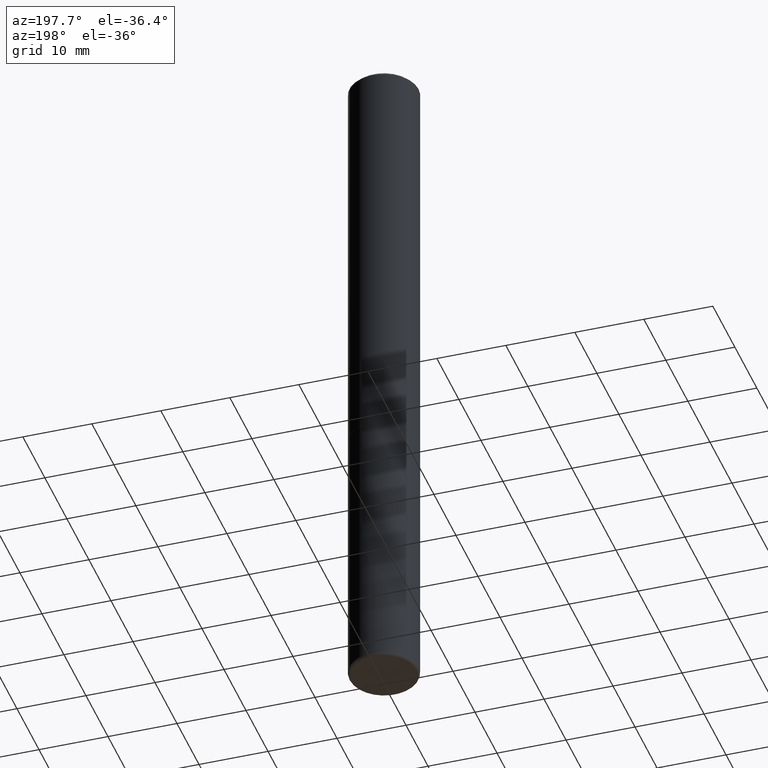
[diagram: clean part render]
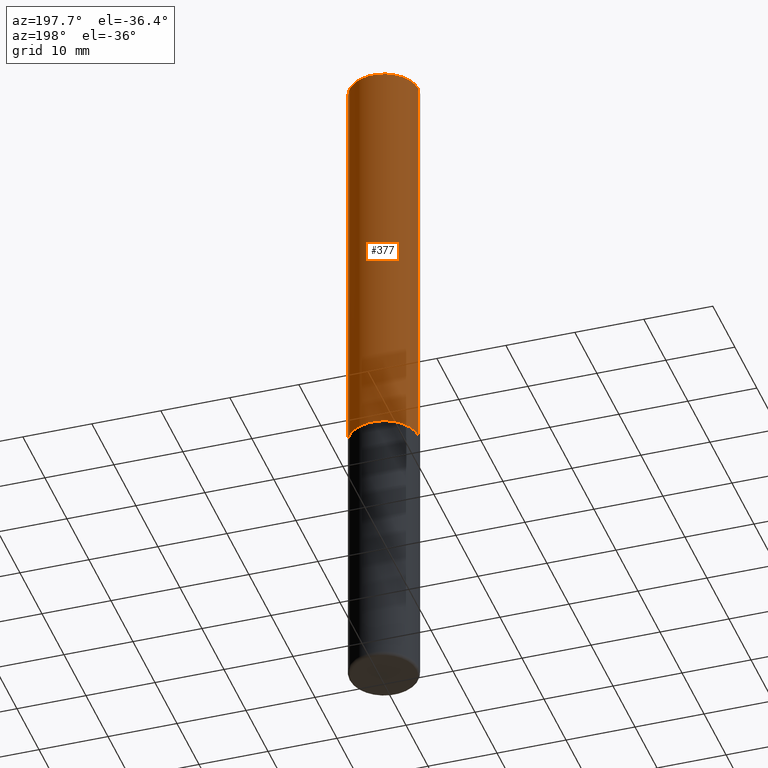
[diagram: same view with one face highlighted and labeled with its STEP entity id]
A machine part, auxiliary view. The second image highlights one B-rep face of the part: STEP entity #377.
In plain terms, the highlighted cylindrical surface (edge-blend (fillet) strip) has radius 5 mm, axis along (-0, 0, 1).
Its self-contained STEP definition (entity closure, byte-faithful):
#8 = VECTOR ( 'NONE', #238, 39.37007874015748143 ) ;
#28 = VERTEX_POINT ( 'NONE', #150 ) ;
#37 = AXIS2_PLACEMENT_3D ( 'NONE', #254, #380, #95 ) ;
#40 = CARTESIAN_POINT ( 'NONE',  ( 0.1968500000000002748, -9.618681940378978228E-15, -2.361199999999999743 ) ) ;
#41 = VERTEX_POINT ( 'NONE', #40 ) ;
#42 = VECTOR ( 'NONE', #297, 39.37007874015748143 ) ;
#51 = CARTESIAN_POINT ( 'NONE',  ( 4.890937612370283668E-31, -6.982962677686305168E-17, -0.02000000000000004205 ) ) ;
#53 = FACE_OUTER_BOUND ( 'NONE', #74, .T. ) ;
#66 = ORIENTED_EDGE ( 'NONE', *, *, #411, .T. ) ;
#68 = LINE ( 'NONE', #202, #8 ) ;
#73 = CIRCLE ( 'NONE', #37, 0.1968500000000002748 ) ;
#74 = EDGE_LOOP ( 'NONE', ( #388, #66, #234, #362 ) ) ;
#88 = CARTESIAN_POINT ( 'NONE',  ( 0.1968500000000000527, -1.420318657638189516E-15, -0.02000000000000004205 ) ) ;
#95 = DIRECTION ( 'NONE',  ( 1.000000000000000000, -6.982962677686269077E-15, 0.000000000000000000 ) ) ;
#101 = DIRECTION ( 'NONE',  ( 1.000000000000000000, -6.982962677686266711E-15, 4.876176775795935793E-29 ) ) ;
#126 = DIRECTION ( 'NONE',  ( -2.445468806185136597E-29, 3.491481338843145583E-15, 1.000000000000000000 ) ) ;
#128 = DIRECTION ( 'NONE',  ( 1.000000000000000000, -6.982962677686266711E-15, 0.000000000000000000 ) ) ;
#150 = CARTESIAN_POINT ( 'NONE',  ( -0.1968500000000002748, -2.758254306682887043E-15, -2.361199999999999743 ) ) ;
#161 = EDGE_CURVE ( 'NONE', #177, #176, #245, .T. ) ;
#176 = VERTEX_POINT ( 'NONE', #318 ) ;
#177 = VERTEX_POINT ( 'NONE', #88 ) ;
#191 = DIRECTION ( 'NONE',  ( -2.445468806185136597E-29, 3.491481338843145583E-15, 1.000000000000000000 ) ) ;
#202 = CARTESIAN_POINT ( 'NONE',  ( -0.1968500000000001915, 1.398703375343758577E-15, -9.682923725166790684E-30 ) ) ;
#216 = CYLINDRICAL_SURFACE ( 'NONE', #381, 0.1968500000000001915 ) ;
#234 = ORIENTED_EDGE ( 'NONE', *, *, #161, .F. ) ;
#238 = DIRECTION ( 'NONE',  ( -2.445468806185136877E-29, 3.491481338843145188E-15, 1.000000000000000000 ) ) ;
#245 = CIRCLE ( 'NONE', #255, 0.1968500000000000527 ) ;
#254 = CARTESIAN_POINT ( 'NONE',  ( 5.774240945164344150E-29, -8.244085737276433464E-15, -2.361199999999999743 ) ) ;
#255 = AXIS2_PLACEMENT_3D ( 'NONE', #51, #191, #128 ) ;
#258 = EDGE_CURVE ( 'NONE', #41, #28, #73, .T. ) ;
#259 = LINE ( 'NONE', #383, #42 ) ;
#262 = EDGE_CURVE ( 'NONE', #41, #177, #259, .T. ) ;
#280 = CARTESIAN_POINT ( 'NONE',  ( 0.000000000000000000, 0.000000000000000000, 0.000000000000000000 ) ) ;
#297 = DIRECTION ( 'NONE',  ( -2.445468806185136877E-29, 3.491481338843145188E-15, 1.000000000000000000 ) ) ;
#318 = CARTESIAN_POINT ( 'NONE',  ( -0.1968500000000000527, 1.304766576325678902E-15, -0.02000000000000004205 ) ) ;
#362 = ORIENTED_EDGE ( 'NONE', *, *, #262, .F. ) ;
#377 = ADVANCED_FACE ( 'NONE', ( #53 ), #216, .T. ) ;
#380 = DIRECTION ( 'NONE',  ( -2.445468806185136597E-29, 3.491481338843145583E-15, 1.000000000000000000 ) ) ;
#381 = AXIS2_PLACEMENT_3D ( 'NONE', #280, #126, #101 ) ;
#383 = CARTESIAN_POINT ( 'NONE',  ( 0.1968500000000001915, -1.374596203102542989E-15, 9.598753983154309266E-30 ) ) ;
#388 = ORIENTED_EDGE ( 'NONE', *, *, #258, .T. ) ;
#411 = EDGE_CURVE ( 'NONE', #28, #176, #68, .T. ) ;